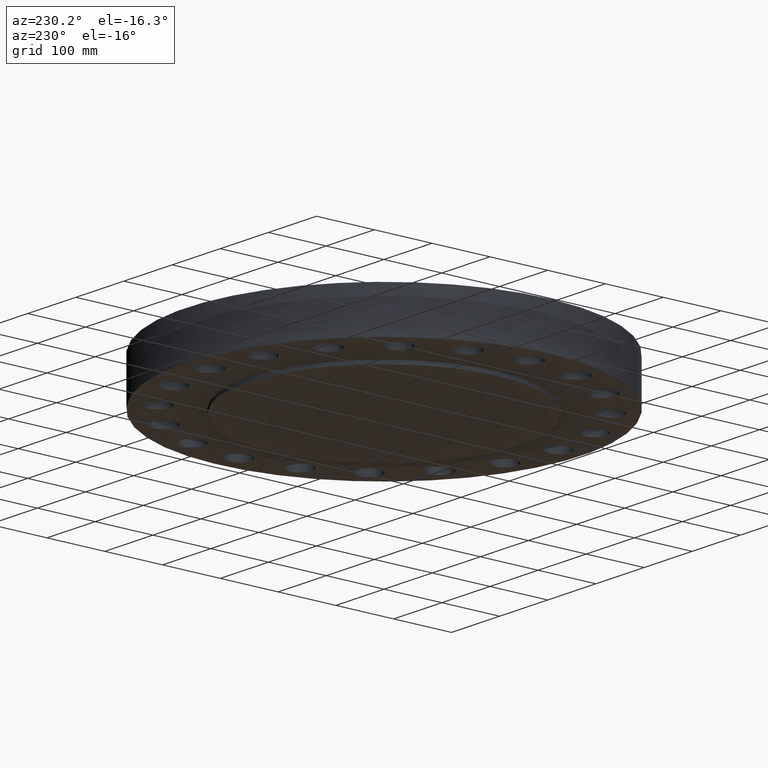
[diagram: clean part render]
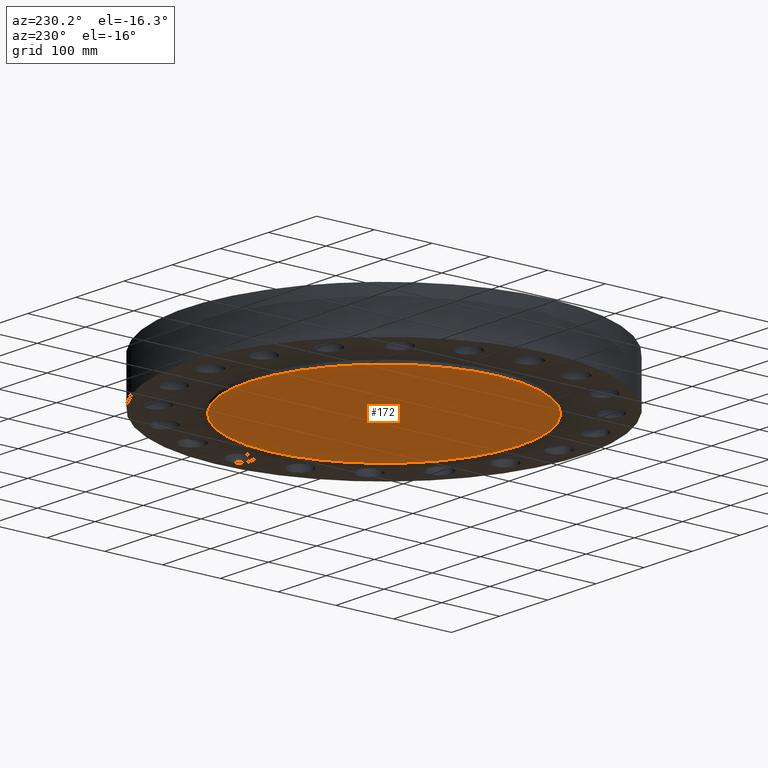
[diagram: same view with one face highlighted and labeled with its STEP entity id]
A machine part, auxiliary view. The second image highlights one B-rep face of the part: STEP entity #172.
In plain terms, the highlighted planar face has unit normal (0, 0, -1).
Its self-contained STEP definition (entity closure, byte-faithful):
#152=AXIS2_PLACEMENT_3D('Plane Axis2P3D',#149,#150,#151) ;
#156=AXIS2_PLACEMENT_3D('Circle Axis2P3D',#154,#155,$) ;
#165=AXIS2_PLACEMENT_3D('Circle Axis2P3D',#163,#164,$) ;
#149=CARTESIAN_POINT('Axis2P3D Location',(0.,0.,-0.250000000001)) ;
#154=CARTESIAN_POINT('Axis2P3D Location',(0.,0.,-0.250000000001)) ;
#158=CARTESIAN_POINT('Vertex',(4.43468623211,8.11763869752,-0.250000000001)) ;
#160=CARTESIAN_POINT('Vertex',(-4.43468623211,-8.11763869752,-0.250000000001)) ;
#163=CARTESIAN_POINT('Axis2P3D Location',(0.,0.,-0.250000000001)) ;
#150=DIRECTION('Axis2P3D Direction',(0.,0.,-0.0393700787402)) ;
#151=DIRECTION('Axis2P3D XDirection',(0.0393700787402,0.,0.)) ;
#155=DIRECTION('Axis2P3D Direction',(0.,0.,-0.0393700787402)) ;
#164=DIRECTION('Axis2P3D Direction',(0.,0.,-0.0393700787402)) ;
#169=ORIENTED_EDGE('',*,*,#162,.T.) ;
#170=ORIENTED_EDGE('',*,*,#167,.T.) ;
#172=ADVANCED_FACE('PartBody',(#171),#153,.T.) ;
#157=CIRCLE('generated circle',#156,9.25000000004) ;
#166=CIRCLE('generated circle',#165,9.25000000004) ;
#162=EDGE_CURVE('',#159,#161,#157,.T.) ;
#167=EDGE_CURVE('',#161,#159,#166,.T.) ;
#168=EDGE_LOOP('',(#169,#170)) ;
#171=FACE_OUTER_BOUND('',#168,.T.) ;
#153=PLANE('',#152) ;
#159=VERTEX_POINT('',#158) ;
#161=VERTEX_POINT('',#160) ;